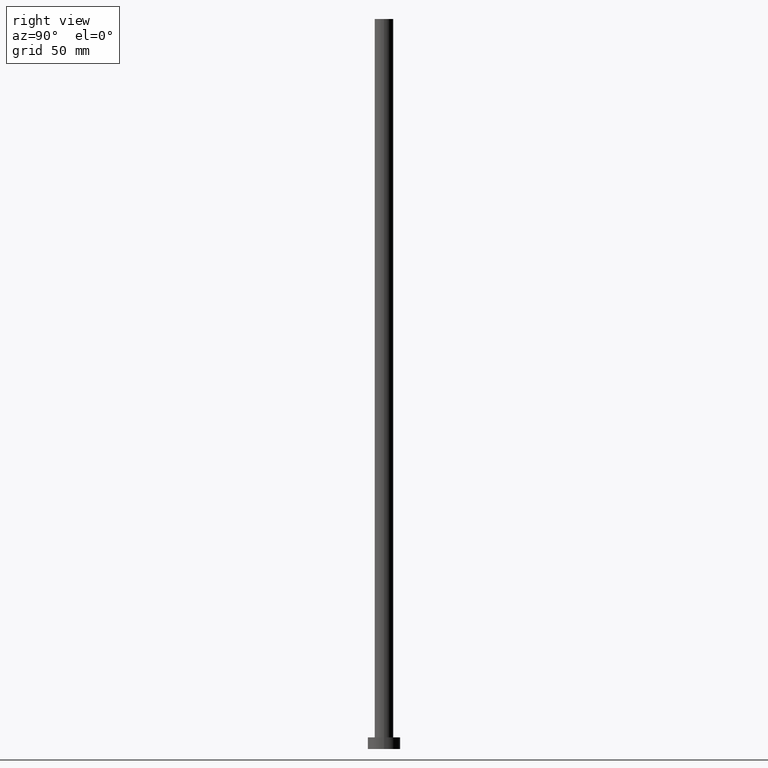
[diagram: clean part render]
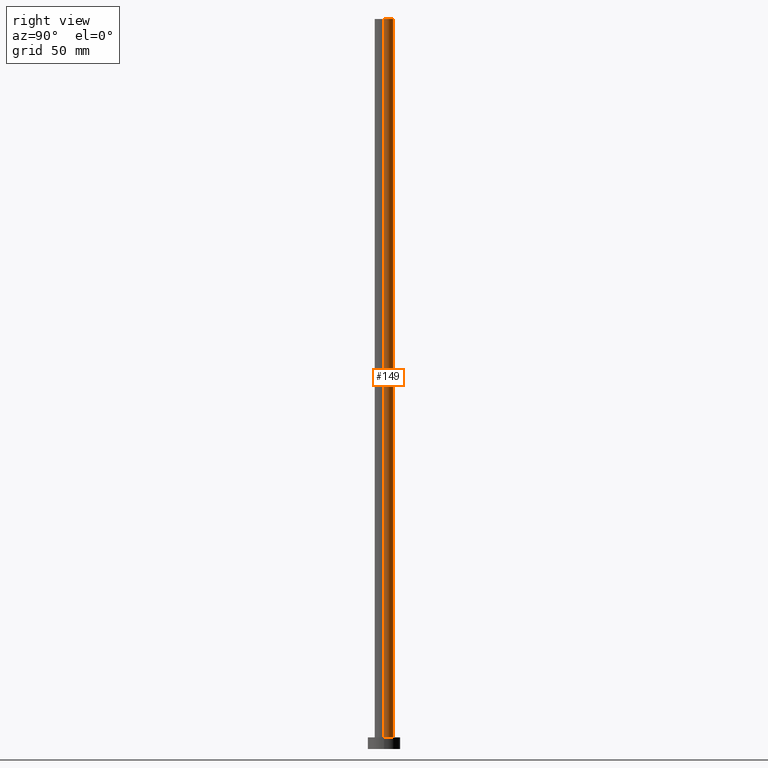
[diagram: same view with one face highlighted and labeled with its STEP entity id]
A machine part, right view. The second image highlights one B-rep face of the part: STEP entity #149.
In plain terms, the highlighted cylindrical surface (edge-blend (fillet) strip) has radius 4 mm, axis along (-0, -0, -1).
Its self-contained STEP definition (entity closure, byte-faithful):
#3 = CIRCLE ( 'NONE', #33, 4.000000000000000000 ) ;
#4 = LINE ( 'NONE', #80, #190 ) ;
#14 = DIRECTION ( 'NONE',  ( -1.000000000000000000, 0.000000000000000000, 0.000000000000000000 ) ) ;
#18 = CARTESIAN_POINT ( 'NONE',  ( 0.000000000000000000, 0.000000000000000000, 315.0000000000000000 ) ) ;
#22 = EDGE_LOOP ( 'NONE', ( #102, #216, #23, #180 ) ) ;
#23 = ORIENTED_EDGE ( 'NONE', *, *, #247, .T. ) ;
#33 = AXIS2_PLACEMENT_3D ( 'NONE', #76, #77, #205 ) ;
#35 = EDGE_CURVE ( 'NONE', #238, #192, #4, .T. ) ;
#58 = DIRECTION ( 'NONE',  ( 1.000000000000000000, 0.000000000000000000, 0.000000000000000000 ) ) ;
#60 = VERTEX_POINT ( 'NONE', #203 ) ;
#66 = DIRECTION ( 'NONE',  ( -0.000000000000000000, -0.000000000000000000, -1.000000000000000000 ) ) ;
#71 = VECTOR ( 'NONE', #72, 1000.000000000000000 ) ;
#72 = DIRECTION ( 'NONE',  ( -0.000000000000000000, -0.000000000000000000, -1.000000000000000000 ) ) ;
#73 = CARTESIAN_POINT ( 'NONE',  ( 4.000000000000000000, 4.898587196589412829E-16, 5.000000000000000000 ) ) ;
#76 = CARTESIAN_POINT ( 'NONE',  ( 0.000000000000000000, 0.000000000000000000, 5.000000000000000000 ) ) ;
#77 = DIRECTION ( 'NONE',  ( 0.000000000000000000, 0.000000000000000000, 1.000000000000000000 ) ) ;
#80 = CARTESIAN_POINT ( 'NONE',  ( 4.000000000000000000, 4.898587196589412829E-16, 315.0000000000000000 ) ) ;
#100 = CARTESIAN_POINT ( 'NONE',  ( 4.000000000000000000, 4.898587196589412829E-16, 315.0000000000000000 ) ) ;
#102 = ORIENTED_EDGE ( 'NONE', *, *, #139, .F. ) ;
#108 = AXIS2_PLACEMENT_3D ( 'NONE', #254, #137, #14 ) ;
#112 = LINE ( 'NONE', #170, #71 ) ;
#137 = DIRECTION ( 'NONE',  ( -0.000000000000000000, -0.000000000000000000, -1.000000000000000000 ) ) ;
#139 = EDGE_CURVE ( 'NONE', #238, #144, #255, .T. ) ;
#144 = VERTEX_POINT ( 'NONE', #152 ) ;
#149 = ADVANCED_FACE ( 'NONE', ( #233 ), #186, .T. ) ;
#152 = CARTESIAN_POINT ( 'NONE',  ( -4.000000000000000000, 0.000000000000000000, 315.0000000000000000 ) ) ;
#170 = CARTESIAN_POINT ( 'NONE',  ( -4.000000000000000000, 0.000000000000000000, 315.0000000000000000 ) ) ;
#173 = DIRECTION ( 'NONE',  ( 0.000000000000000000, 0.000000000000000000, 1.000000000000000000 ) ) ;
#180 = ORIENTED_EDGE ( 'NONE', *, *, #210, .F. ) ;
#182 = AXIS2_PLACEMENT_3D ( 'NONE', #18, #173, #58 ) ;
#186 = CYLINDRICAL_SURFACE ( 'NONE', #108, 4.000000000000000000 ) ;
#190 = VECTOR ( 'NONE', #66, 1000.000000000000000 ) ;
#192 = VERTEX_POINT ( 'NONE', #73 ) ;
#203 = CARTESIAN_POINT ( 'NONE',  ( -4.000000000000000000, 0.000000000000000000, 5.000000000000000000 ) ) ;
#205 = DIRECTION ( 'NONE',  ( 1.000000000000000000, 0.000000000000000000, 0.000000000000000000 ) ) ;
#210 = EDGE_CURVE ( 'NONE', #144, #60, #112, .T. ) ;
#216 = ORIENTED_EDGE ( 'NONE', *, *, #35, .T. ) ;
#233 = FACE_OUTER_BOUND ( 'NONE', #22, .T. ) ;
#238 = VERTEX_POINT ( 'NONE', #100 ) ;
#247 = EDGE_CURVE ( 'NONE', #192, #60, #3, .T. ) ;
#254 = CARTESIAN_POINT ( 'NONE',  ( 0.000000000000000000, 0.000000000000000000, 315.0000000000000000 ) ) ;
#255 = CIRCLE ( 'NONE', #182, 4.000000000000000000 ) ;